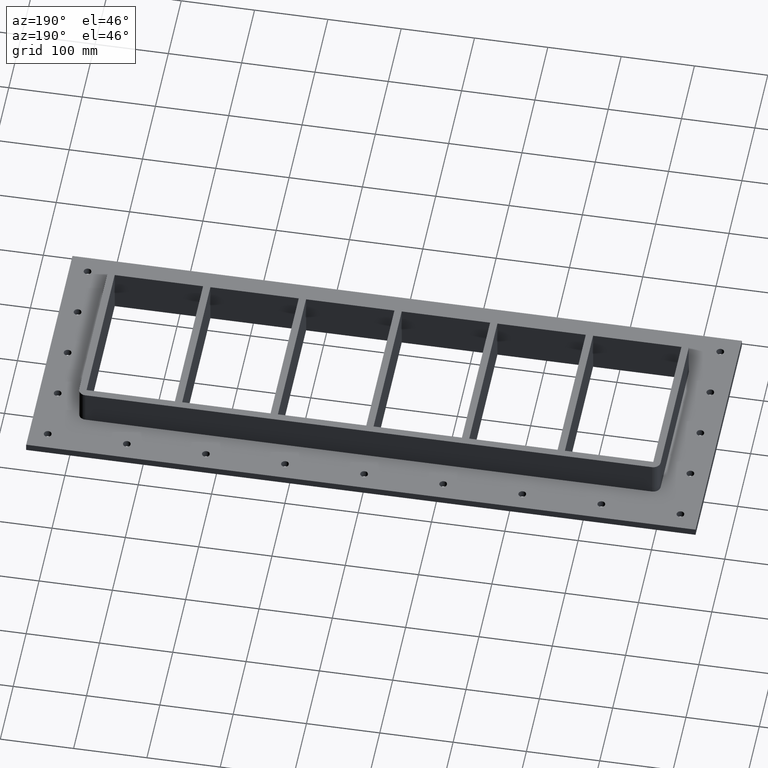
[diagram: clean part render]
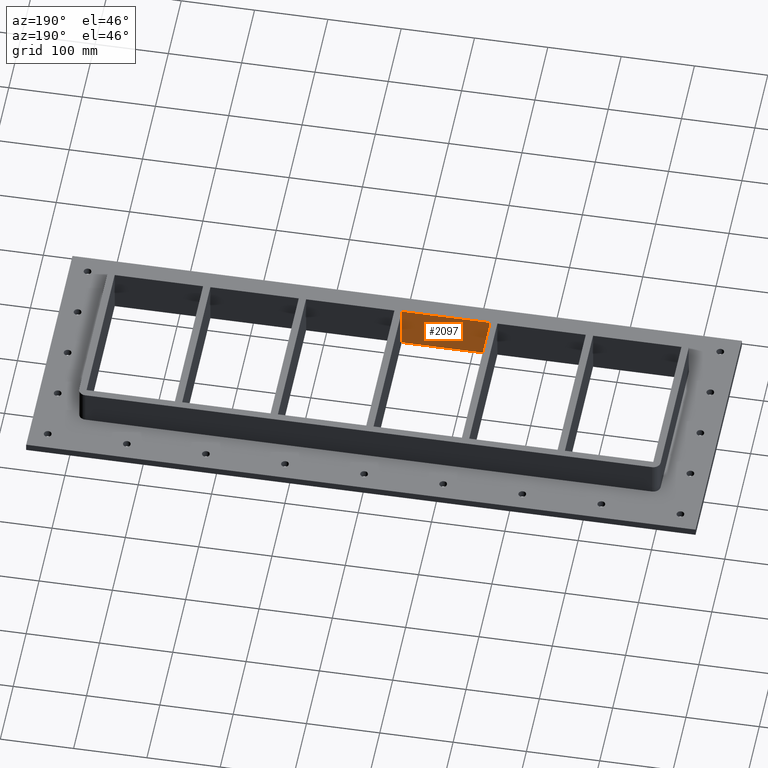
[diagram: same view with one face highlighted and labeled with its STEP entity id]
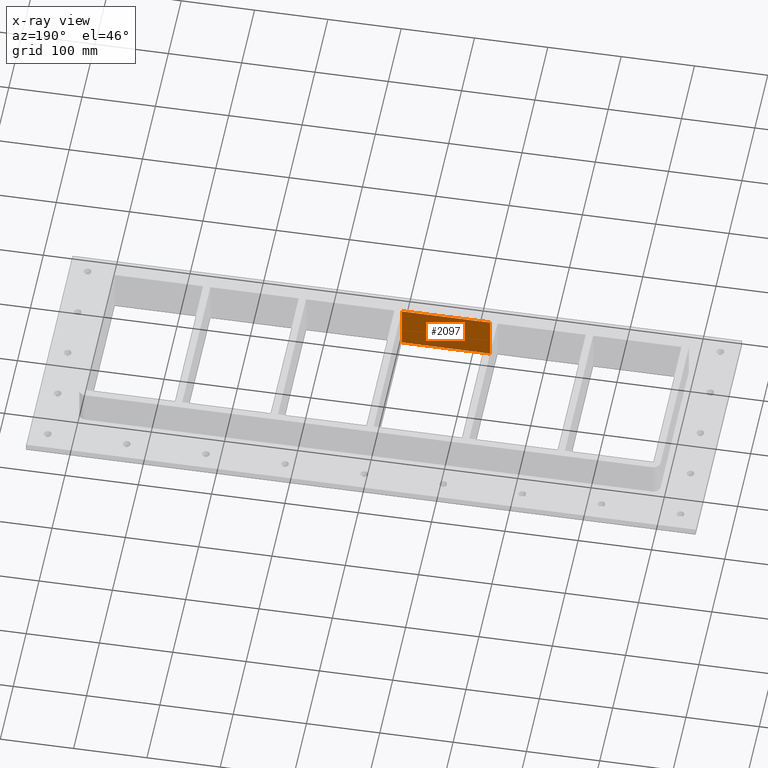
[diagram: x-ray of the same camera — body ghosted, the highlighted face saturated]
A machine part, auxiliary view. The second image highlights one B-rep face of the part: STEP entity #2097.
The next image is the same camera in x-ray: the body ghosted, the highlighted face saturated — about 0% of this face is hidden behind the body in this view.
In plain terms, the highlighted planar face has unit normal (0, -1, 0).
Its self-contained STEP definition (entity closure, byte-faithful):
#1546=CARTESIAN_POINT('',(-125.50000000000004,-109.00000000000034,-30.0));
#1547=VERTEX_POINT('',#1546);
#1554=CARTESIAN_POINT('',(-5.000000000000036,-109.00000000000051,-30.0));
#1555=VERTEX_POINT('',#1554);
#1556=CARTESIAN_POINT('',(-125.50000000000004,-109.00000000000033,-30.0));
#1557=DIRECTION('',(1.0,0.0,0.0));
#1558=VECTOR('',#1557,120.5);
#1559=LINE('',#1556,#1558);
#1560=EDGE_CURVE('',#1547,#1555,#1559,.T.);
#2057=CARTESIAN_POINT('',(-125.50000000000004,-109.00000000000034,30.0));
#2058=VERTEX_POINT('',#2057);
#2065=CARTESIAN_POINT('',(-125.50000000000004,-109.00000000000034,30.0));
#2066=DIRECTION('',(0.0,0.0,-1.0));
#2067=VECTOR('',#2066,60.0);
#2068=LINE('',#2065,#2067);
#2069=EDGE_CURVE('',#2058,#1547,#2068,.T.);
#2074=CARTESIAN_POINT('',(-5.000000000000036,-109.00000000000051,30.0));
#2075=DIRECTION('',(0.0,-1.0,0.0));
#2076=DIRECTION('',(-1.0,0.0,0.0));
#2077=AXIS2_PLACEMENT_3D('',#2074,#2075,#2076);
#2078=PLANE('',#2077);
#2079=ORIENTED_EDGE('',*,*,#1560,.F.);
#2080=ORIENTED_EDGE('',*,*,#2069,.F.);
#2081=CARTESIAN_POINT('',(-5.000000000000036,-109.00000000000051,30.0));
#2082=VERTEX_POINT('',#2081);
#2083=CARTESIAN_POINT('',(-5.000000000000036,-109.00000000000051,30.0));
#2084=DIRECTION('',(-1.0,0.0,0.0));
#2085=VECTOR('',#2084,120.5);
#2086=LINE('',#2083,#2085);
#2087=EDGE_CURVE('',#2082,#2058,#2086,.T.);
#2088=ORIENTED_EDGE('',*,*,#2087,.F.);
#2089=CARTESIAN_POINT('',(-5.000000000000036,-109.00000000000051,30.0));
#2090=DIRECTION('',(0.0,0.0,-1.0));
#2091=VECTOR('',#2090,60.0);
#2092=LINE('',#2089,#2091);
#2093=EDGE_CURVE('',#2082,#1555,#2092,.T.);
#2094=ORIENTED_EDGE('',*,*,#2093,.T.);
#2095=EDGE_LOOP('',(#2079,#2080,#2088,#2094));
#2096=FACE_OUTER_BOUND('',#2095,.T.);
#2097=ADVANCED_FACE('',(#2096),#2078,.F.);